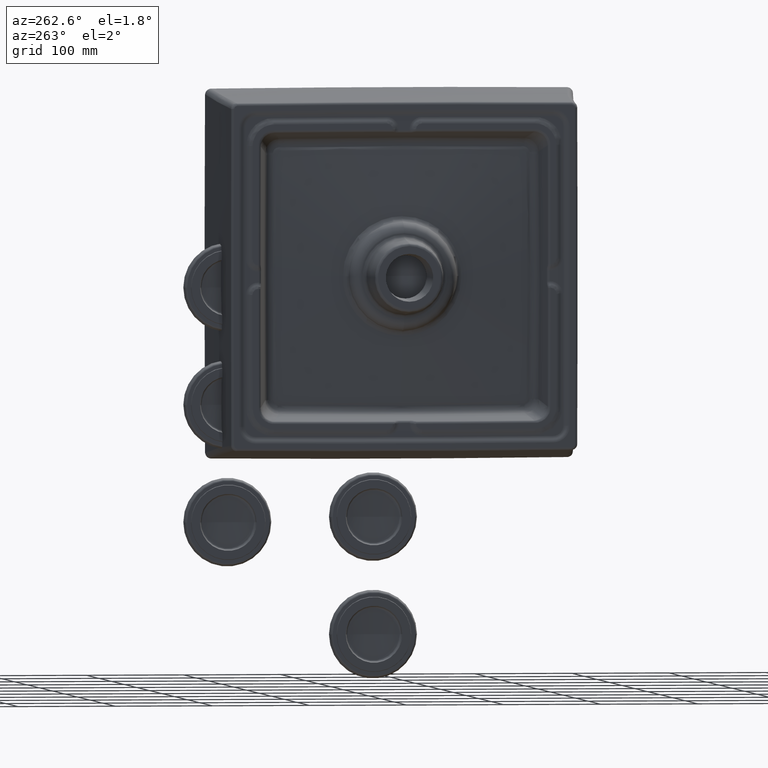
[diagram: clean part render]
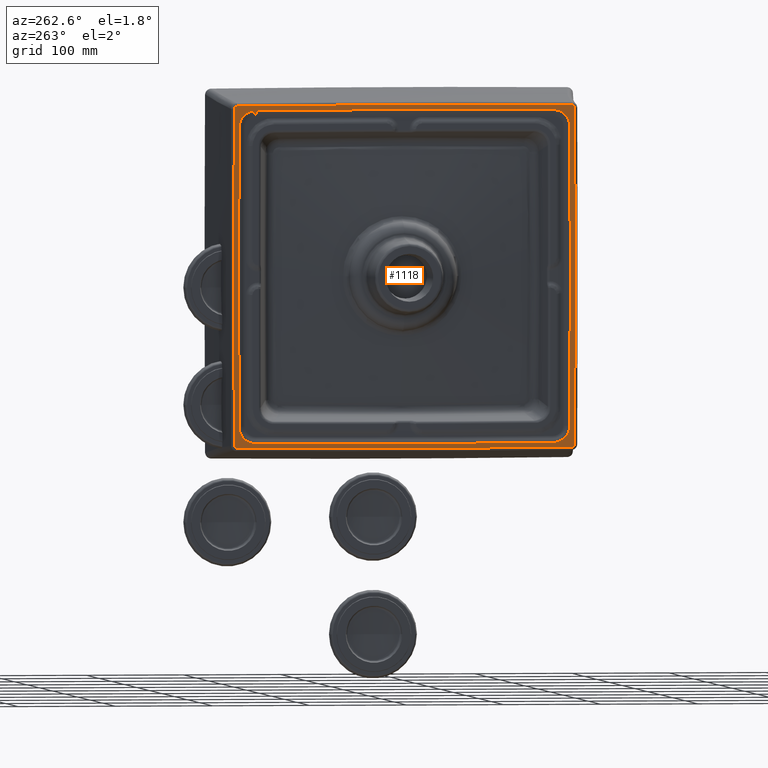
[diagram: same view with one face highlighted and labeled with its STEP entity id]
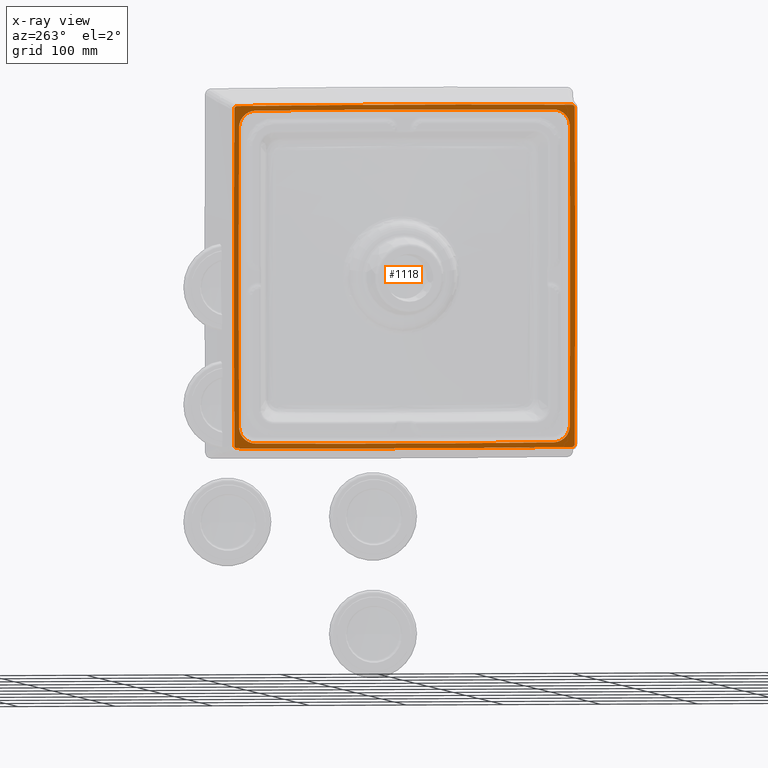
[diagram: x-ray of the same camera — body ghosted, the highlighted face saturated]
A machine part, auxiliary view. The second image highlights one B-rep face of the part: STEP entity #1118.
The next image is the same camera in x-ray: the body ghosted, the highlighted face saturated — about 0% of this face is hidden behind the body in this view.
In plain terms, the highlighted planar face has unit normal (1, 0, 0).
Its self-contained STEP definition (entity closure, byte-faithful):
#633=FACE_BOUND('',#2151,.T.);
#634=FACE_BOUND('',#2152,.T.);
#675=PLANE('',#7001);
#710=B_SPLINE_CURVE_WITH_KNOTS('',3,(#9653,#9654,#9655,#9656,#9657,#9658,
#9659,#9660,#9661),.UNSPECIFIED.,.F.,.F.,(4,1,1,1,1,1,4),(0.,0.1666666666667,
0.3333333333333,0.5,0.6666666666667,0.8333333333333,1.),.UNSPECIFIED.);
#711=B_SPLINE_CURVE_WITH_KNOTS('',3,(#9665,#9666,#9667,#9668,#9669,#9670,
#9671,#9672,#9673),.UNSPECIFIED.,.F.,.F.,(4,1,1,1,1,1,4),(0.,0.1666666666667,
0.3333333333333,0.5,0.6666666666667,0.8333333333333,1.),.UNSPECIFIED.);
#712=B_SPLINE_CURVE_WITH_KNOTS('',3,(#9677,#9678,#9679,#9680,#9681,#9682,
#9683,#9684,#9685),.UNSPECIFIED.,.F.,.F.,(4,1,1,1,1,1,4),(0.,0.1666666666667,
0.3333333333333,0.5,0.6666666666667,0.8333333333333,1.),.UNSPECIFIED.);
#713=B_SPLINE_CURVE_WITH_KNOTS('',3,(#9689,#9690,#9691,#9692,#9693,#9694,
#9695,#9696,#9697),.UNSPECIFIED.,.F.,.F.,(4,1,1,1,1,1,4),(0.,0.1666666666667,
0.3333333333333,0.5,0.6666666666667,0.8333333333333,1.),.UNSPECIFIED.);
#1118=ADVANCED_FACE('',(#633,#634),#675,.F.);
#2151=EDGE_LOOP('',(#2664,#2665,#2666,#2667,#2668,#2669,#2670,#2671));
#2152=EDGE_LOOP('',(#2672,#2673,#2674,#2675,#2676,#2677,#2678,#2679));
#2664=ORIENTED_EDGE('',*,*,#5396,.T.);
#2665=ORIENTED_EDGE('',*,*,#5397,.T.);
#2666=ORIENTED_EDGE('',*,*,#5398,.T.);
#2667=ORIENTED_EDGE('',*,*,#5399,.T.);
#2668=ORIENTED_EDGE('',*,*,#5400,.T.);
#2669=ORIENTED_EDGE('',*,*,#5401,.T.);
#2670=ORIENTED_EDGE('',*,*,#5402,.T.);
#2671=ORIENTED_EDGE('',*,*,#5403,.T.);
#2672=ORIENTED_EDGE('',*,*,#5404,.T.);
#2673=ORIENTED_EDGE('',*,*,#5405,.T.);
#2674=ORIENTED_EDGE('',*,*,#5406,.T.);
#2675=ORIENTED_EDGE('',*,*,#5407,.T.);
#2676=ORIENTED_EDGE('',*,*,#5408,.T.);
#2677=ORIENTED_EDGE('',*,*,#5409,.T.);
#2678=ORIENTED_EDGE('',*,*,#5410,.T.);
#2679=ORIENTED_EDGE('',*,*,#5363,.T.);
#4736=VERTEX_POINT('',#9454);
#4739=VERTEX_POINT('',#9459);
#4772=VERTEX_POINT('',#9651);
#4773=VERTEX_POINT('',#9652);
#4774=VERTEX_POINT('',#9662);
#4775=VERTEX_POINT('',#9664);
#4776=VERTEX_POINT('',#9674);
#4777=VERTEX_POINT('',#9676);
#4778=VERTEX_POINT('',#9686);
#4779=VERTEX_POINT('',#9688);
#4780=VERTEX_POINT('',#9699);
#4781=VERTEX_POINT('',#9701);
#4782=VERTEX_POINT('',#9703);
#4783=VERTEX_POINT('',#9705);
#4784=VERTEX_POINT('',#9707);
#4785=VERTEX_POINT('',#9709);
#5363=EDGE_CURVE('',#4736,#4739,#6417,.T.);
#5396=EDGE_CURVE('',#4772,#4773,#6442,.T.);
#5397=EDGE_CURVE('',#4773,#4774,#710,.T.);
#5398=EDGE_CURVE('',#4774,#4775,#6443,.T.);
#5399=EDGE_CURVE('',#4775,#4776,#711,.T.);
#5400=EDGE_CURVE('',#4776,#4777,#6444,.T.);
#5401=EDGE_CURVE('',#4777,#4778,#712,.T.);
#5402=EDGE_CURVE('',#4778,#4779,#6445,.T.);
#5403=EDGE_CURVE('',#4779,#4772,#713,.T.);
#5404=EDGE_CURVE('',#4739,#4780,#6446,.T.);
#5405=EDGE_CURVE('',#4780,#4781,#6447,.T.);
#5406=EDGE_CURVE('',#4781,#4782,#6448,.T.);
#5407=EDGE_CURVE('',#4782,#4783,#6449,.T.);
#5408=EDGE_CURVE('',#4783,#4784,#6450,.T.);
#5409=EDGE_CURVE('',#4784,#4785,#6451,.T.);
#5410=EDGE_CURVE('',#4785,#4736,#6452,.T.);
#6417=CIRCLE('',#6960,17.16111362571);
#6442=CIRCLE('',#6990,19985.15446923);
#6443=CIRCLE('',#6991,39985.15446923);
#6444=CIRCLE('',#6992,19985.15446923);
#6445=CIRCLE('',#6993,39985.15446923);
#6446=CIRCLE('',#6994,19980.16111363);
#6447=CIRCLE('',#6995,17.16111362571);
#6448=CIRCLE('',#6996,39980.16111363);
#6449=CIRCLE('',#6997,17.16111362571);
#6450=CIRCLE('',#6998,19980.16111363);
#6451=CIRCLE('',#6999,17.16111362571);
#6452=CIRCLE('',#7000,39980.16111363);
#6960=AXIS2_PLACEMENT_3D('',#9460,#7767,#7768);
#6990=AXIS2_PLACEMENT_3D('',#9650,#7827,#7828);
#6991=AXIS2_PLACEMENT_3D('',#9663,#7829,#7830);
#6992=AXIS2_PLACEMENT_3D('',#9675,#7831,#7832);
#6993=AXIS2_PLACEMENT_3D('',#9687,#7833,#7834);
#6994=AXIS2_PLACEMENT_3D('',#9698,#7835,#7836);
#6995=AXIS2_PLACEMENT_3D('',#9700,#7837,#7838);
#6996=AXIS2_PLACEMENT_3D('',#9702,#7839,#7840);
#6997=AXIS2_PLACEMENT_3D('',#9704,#7841,#7842);
#6998=AXIS2_PLACEMENT_3D('',#9706,#7843,#7844);
#6999=AXIS2_PLACEMENT_3D('',#9708,#7845,#7846);
#7000=AXIS2_PLACEMENT_3D('',#9710,#7847,#7848);
#7001=AXIS2_PLACEMENT_3D('',#9711,#7849,#7850);
#7767=DIRECTION('',(0.,1.,0.));
#7768=DIRECTION('',(0.0038263416304667,0.,0.999992679528069));
#7827=DIRECTION('',(0.,-1.,0.));
#7828=DIRECTION('',(-0.999962828591996,0.,0.00862214789339396));
#7829=DIRECTION('',(0.,-1.,0.));
#7830=DIRECTION('',(-0.00429981708896088,0.,-0.999990755743773));
#7831=DIRECTION('',(0.,-1.,0.));
#7832=DIRECTION('',(0.999962828591994,0.,-0.00862214789356795));
#7833=DIRECTION('',(0.,-1.,0.));
#7834=DIRECTION('',(0.0042998170877789,0.,0.999990755743778));
#7835=DIRECTION('',(0.,1.,0.));
#7836=DIRECTION('',(0.999970550049752,0.,0.00767457055452463));
#7837=DIRECTION('',(0.,1.,0.));
#7838=DIRECTION('',(0.999970550049755,0.,-0.00767457055424502));
#7839=DIRECTION('',(0.,1.,0.));
#7840=DIRECTION('',(0.00382634163208986,0.,-0.999992679528063));
#7841=DIRECTION('',(0.,1.,0.));
#7842=DIRECTION('',(-0.00382634163073195,0.,-0.999992679528068));
#7843=DIRECTION('',(0.,1.,0.));
#7844=DIRECTION('',(-0.999970550049752,0.,-0.00767457055452463));
#7845=DIRECTION('',(0.,1.,0.));
#7846=DIRECTION('',(-0.999970550049761,0.,0.00767457055341532));
#7847=DIRECTION('',(0.,1.,0.));
#7848=DIRECTION('',(-0.00382634163208986,0.,0.999992679528063));
#7849=DIRECTION('',(0.,1.,0.));
#7850=DIRECTION('',(-1.,0.,0.));
#9454=CARTESIAN_POINT('',(152.9777549267,0.,170.3684399782));
#9459=CARTESIAN_POINT('',(170.072698875,0.,153.3391561573));
#9460=CARTESIAN_POINT('',(152.9120906432,0.,153.20745198));
#9650=CARTESIAN_POINT('',(19809.5,0.,0.));
#9651=CARTESIAN_POINT('',(-174.9115931394,4.292862361884E-014,172.3149575081));
#9652=CARTESIAN_POINT('',(-174.9115928914,0.,-172.3149587051));
#9653=CARTESIAN_POINT('',(-174.9115934439,3.271457179229E-014,-172.3149587099));
#9654=CARTESIAN_POINT('',(-174.9093679312,3.271496659554E-014,-172.5808801381));
#9655=CARTESIAN_POINT('',(-174.8368463567,-1.519470208701E-012,-173.0919094152));
#9656=CARTESIAN_POINT('',(-174.5321110989,5.269073280562E-012,-173.8187897156));
#9657=CARTESIAN_POINT('',(-174.0519698452,-1.955682291355E-011,-174.4381616477));
#9658=CARTESIAN_POINT('',(-173.43009608,7.295821837362E-011,-174.9142166847));
#9659=CARTESIAN_POINT('',(-172.7016309724,-2.722760505809E-010,-175.2144785374));
#9660=CARTESIAN_POINT('',(-172.1929585734,5.866719724398E-010,-175.2837919249));
#9661=CARTESIAN_POINT('',(-171.9288504932,5.866513201151E-010,-175.2848366021));
#9662=CARTESIAN_POINT('',(-171.9288504932,5.866513201151E-010,-175.2848366021));
#9663=CARTESIAN_POINT('',(0.,0.,39809.5));
#9664=CARTESIAN_POINT('',(171.9288493405,0.,-175.2848362243));
#9665=CARTESIAN_POINT('',(171.9288493399,5.92423443635E-010,-175.2848361012));
#9666=CARTESIAN_POINT('',(172.1929574937,5.92444296971E-010,-175.2837914378));
#9667=CARTESIAN_POINT('',(172.7016300245,-2.749550300452E-010,-175.2144772981));
#9668=CARTESIAN_POINT('',(173.4300953512,7.367615970163E-011,-174.9142157104));
#9669=CARTESIAN_POINT('',(174.0519692234,-1.974960876133E-011,-174.4381605106));
#9670=CARTESIAN_POINT('',(174.5321105698,5.322275343694E-012,-173.8187885424));
#9671=CARTESIAN_POINT('',(174.8368456143,-1.539492613446E-012,-173.0919082144));
#9672=CARTESIAN_POINT('',(174.9093676389,4.396586891054E-014,-172.580878939));
#9673=CARTESIAN_POINT('',(174.9115931247,4.396483177516E-014,-172.3149575115));
#9674=CARTESIAN_POINT('',(174.9115931247,4.396483177516E-014,-172.3149575115));
#9675=CARTESIAN_POINT('',(-19809.5,0.,0.));
#9676=CARTESIAN_POINT('',(174.9115928918,0.,172.3149586593));
#9677=CARTESIAN_POINT('',(174.9115933928,3.28626015289E-014,172.3149586636));
#9678=CARTESIAN_POINT('',(174.9093678805,3.286307658878E-014,172.5808800932));
#9679=CARTESIAN_POINT('',(174.8368462312,-1.520500794623E-012,173.0919093711));
#9680=CARTESIAN_POINT('',(174.5321110052,5.272458166297E-012,173.8187896719));
#9681=CARTESIAN_POINT('',(174.051969748,-1.956933187057E-011,174.4381615977));
#9682=CARTESIAN_POINT('',(173.4300959952,7.300486931597E-011,174.9142166326));
#9683=CARTESIAN_POINT('',(172.7016309038,-2.724501453933E-010,175.2144784589));
#9684=CARTESIAN_POINT('',(172.1929585186,5.870470930404E-010,175.2837918925));
#9685=CARTESIAN_POINT('',(171.9288504458,5.870264274677E-010,175.2848365693));
#9686=CARTESIAN_POINT('',(171.9288504458,5.870264274677E-010,175.2848365693));
#9687=CARTESIAN_POINT('',(0.,0.,-39809.5));
#9688=CARTESIAN_POINT('',(-171.9288493378,5.923781465356E-010,175.2848361051));
#9689=CARTESIAN_POINT('',(-171.9288493378,5.923781465356E-010,175.2848361051));
#9690=CARTESIAN_POINT('',(-172.1929574959,5.923989982785E-010,175.2837914418));
#9691=CARTESIAN_POINT('',(-172.7016300347,-2.749340041488E-010,175.214477307));
#9692=CARTESIAN_POINT('',(-173.4300953716,7.367051710307E-011,174.9142157132));
#9693=CARTESIAN_POINT('',(-174.0519692508,-1.974806426348E-011,174.4381605097));
#9694=CARTESIAN_POINT('',(-174.5321105975,5.321739950842E-012,173.8187885384));
#9695=CARTESIAN_POINT('',(-174.8368456508,-1.538895539889E-012,173.09190821));
#9696=CARTESIAN_POINT('',(-174.9093676537,4.292962584639E-014,172.580878935));
#9697=CARTESIAN_POINT('',(-174.9115931394,4.292862361884E-014,172.3149575081));
#9698=CARTESIAN_POINT('',(-19809.5,0.,0.));
#9699=CARTESIAN_POINT('',(170.072698875,0.,-153.3391561573));
#9700=CARTESIAN_POINT('',(152.9120906432,0.,-153.20745198));
#9701=CARTESIAN_POINT('',(152.9777549267,0.,-170.3684399782));
#9702=CARTESIAN_POINT('',(0.,0.,39809.5));
#9703=CARTESIAN_POINT('',(-152.9777549267,0.,-170.3684399782));
#9704=CARTESIAN_POINT('',(-152.9120906432,0.,-153.20745198));
#9705=CARTESIAN_POINT('',(-170.072698875,0.,-153.3391561573));
#9706=CARTESIAN_POINT('',(19809.5,0.,0.));
#9707=CARTESIAN_POINT('',(-170.072698875,0.,153.3391561573));
#9708=CARTESIAN_POINT('',(-152.9120906432,0.,153.20745198));
#9709=CARTESIAN_POINT('',(-152.9777549267,0.,170.3684399782));
#9710=CARTESIAN_POINT('',(0.,0.,-39809.5));
#9711=CARTESIAN_POINT('',(0.,0.,0.));